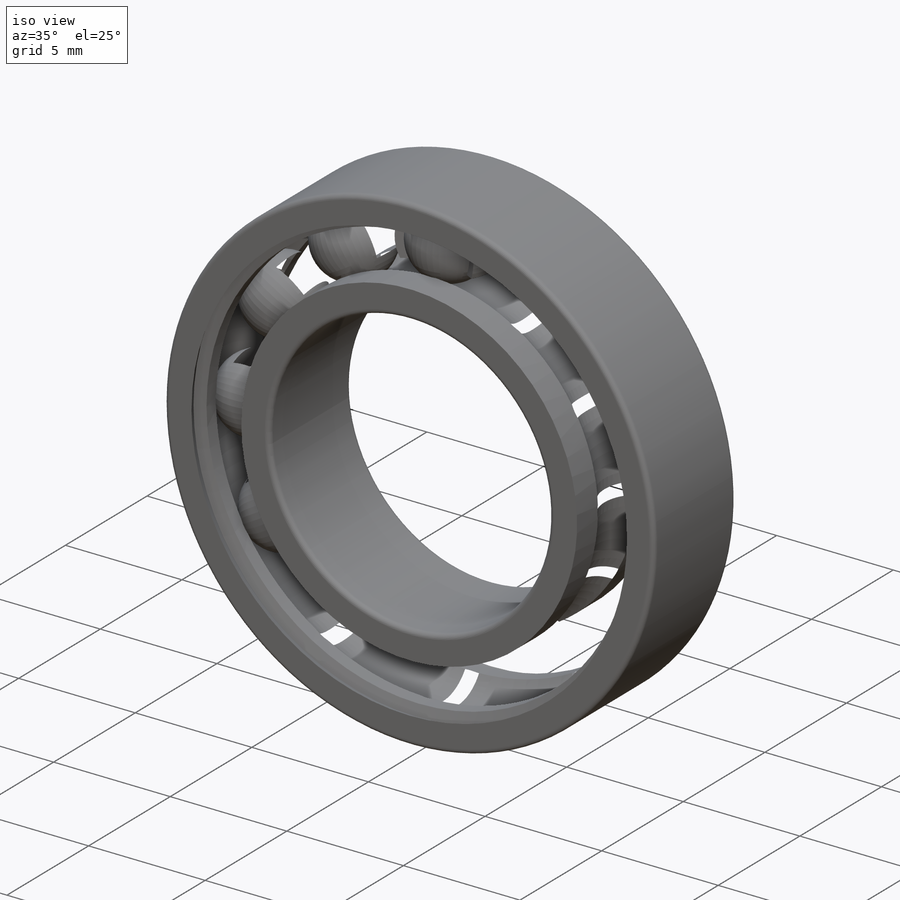
[diagram: iso view]
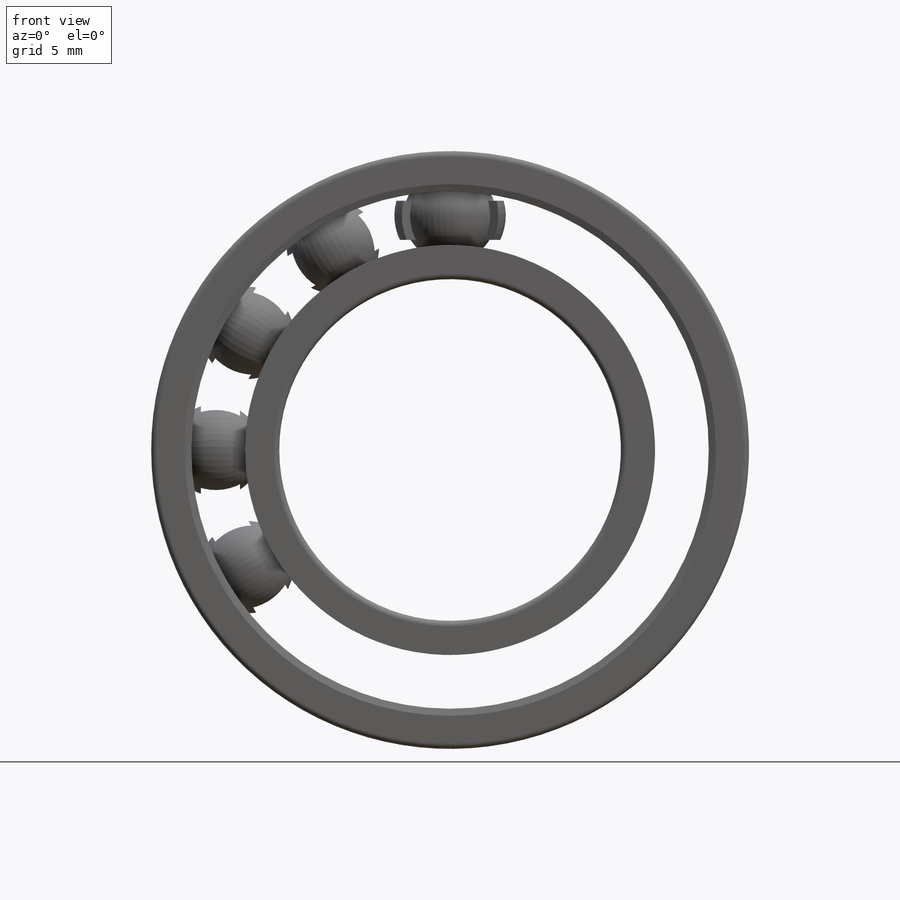
[diagram: front view]
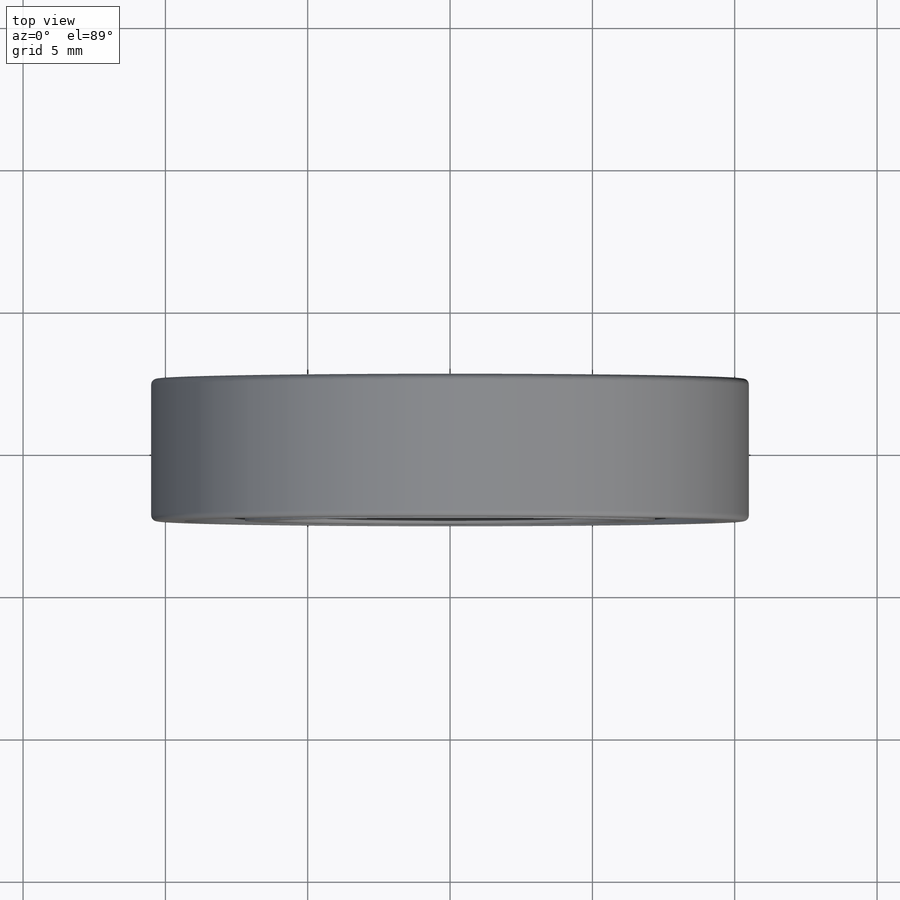
[diagram: top view]
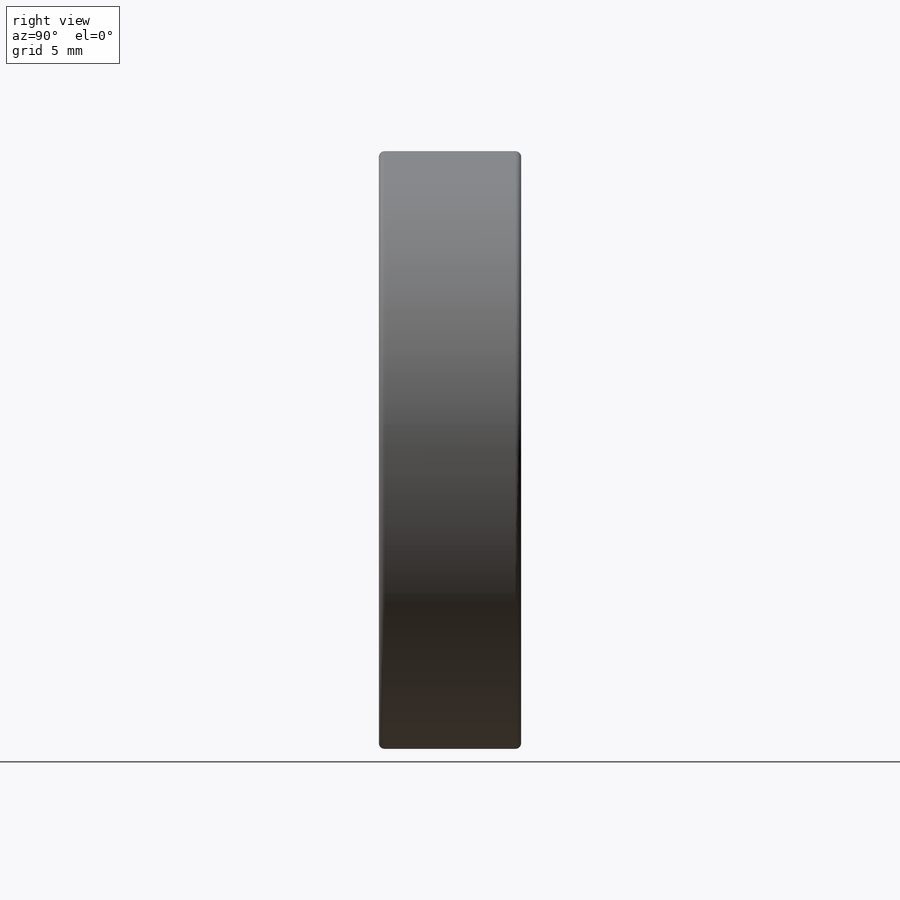
[diagram: right view]
SOLIDWORKS PART (.sldprt)
format: sldprt  version: not decoded by parser v0  size: 915,456 bytes
history: native  units: mm
features: sketch x4, revolve x4, material x1, pattern_circular x1 (+13 scaffold rows collapsed)
feature tree (23):
  scaffold x13  (default folders/planes/origin — collapsed)
  material  "Alloy Steel"
  sketch  "Sketch1"  dims[D1=0.2mm D2=1.6mm D3=1.2mm D4=12.0mm D5=5.0mm D6=21.0mm]
  revolve  "Revolve1"  Angle=360deg
  sketch  "Sketch2"  dims[D1=3.25mm]
  revolve  "Revolve2"  Angle=360deg
  sketch  "Sketch3"
  revolve  "Revolve3"  Angle=240deg
  pattern_circular  "CirPattern1"  Count=12 Angle=360deg
  sketch  "Sketch4"  dims[D1=1.0mm]
  revolve  "Revolve4"  Angle=360deg
decode coverage: 8 of 9 modeling features carry decoded parameters
note: suppression state not decoded; provenance and decode notes live in map.json
